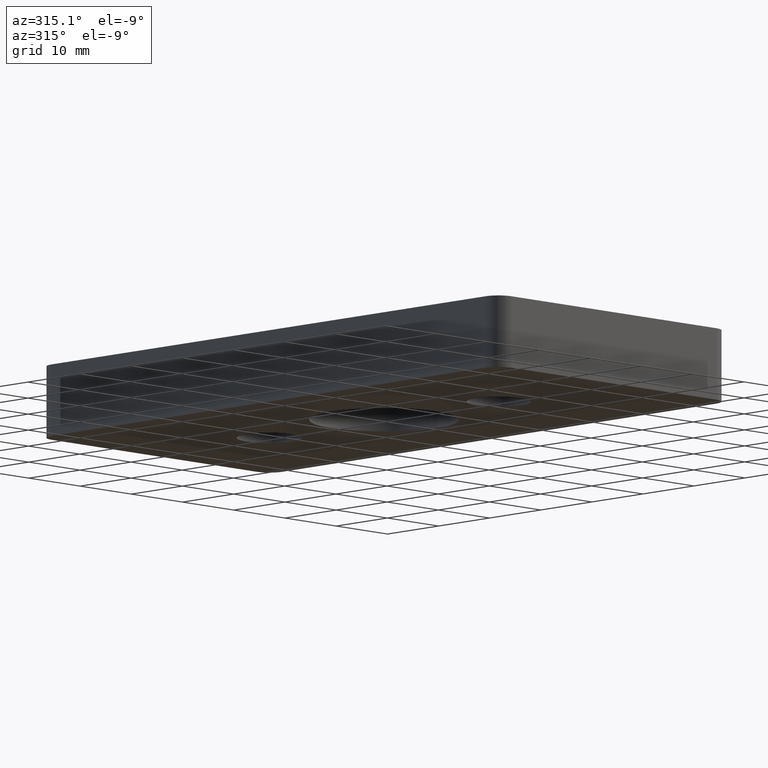
[diagram: clean part render]
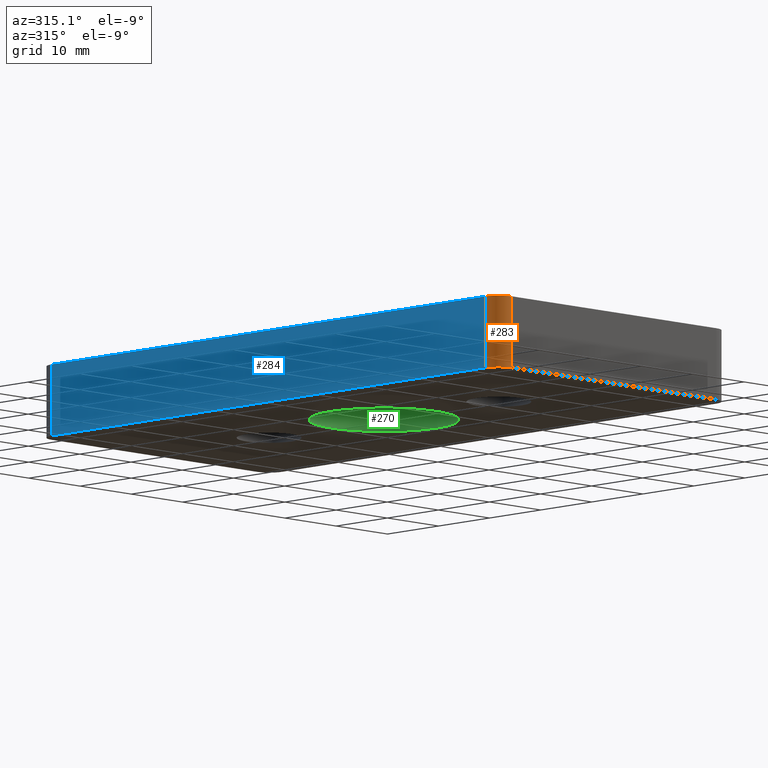
[diagram: same view with three faces highlighted in distinct colors, each labeled with its STEP entity id]
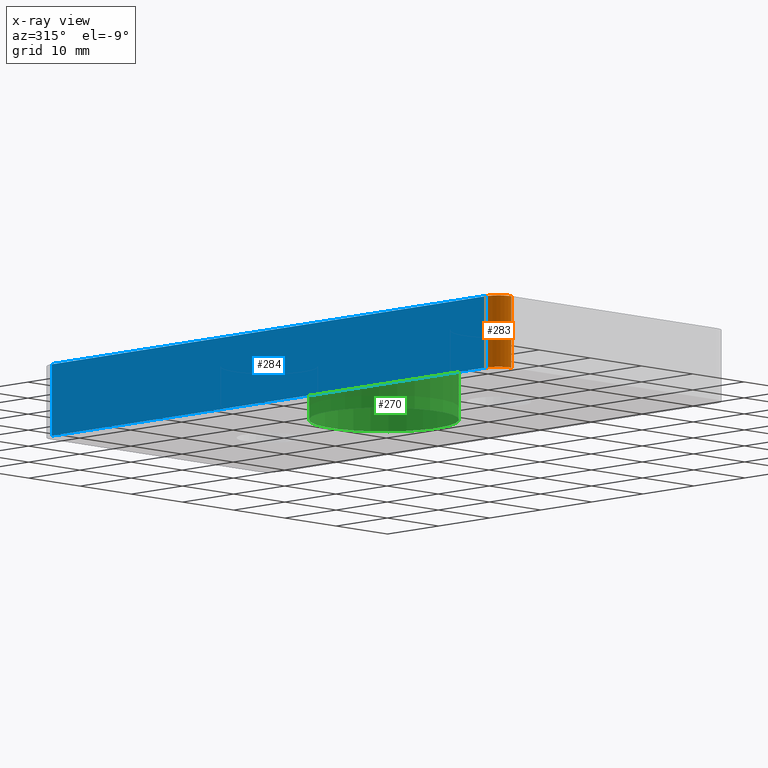
[diagram: x-ray of the same camera — body ghosted, the three highlighted faces saturated]
A machine part, auxiliary view with three faces highlighted in distinct colors.
The next image is the same camera in x-ray (body ghosted, the three faces saturated) — at least one of them is partly hidden behind the body in this view.
Their STEP definitions:

[orange] entity #283 — the highlighted cylindrical surface (edge-blend (fillet) strip) has radius 2.5 mm, axis along (0, 0, 1).
#27=LINE('',#478,#43);
#28=LINE('',#484,#44);
#43=VECTOR('',#396,10.);
#44=VECTOR('',#403,10.);
#81=FACE_OUTER_BOUND('',#105,.T.);
#105=EDGE_LOOP('',(#231,#232,#233,#234));
#131=CIRCLE('',#319,2.5);
#132=CIRCLE('',#320,2.5);
#155=VERTEX_POINT('',#474);
#156=VERTEX_POINT('',#476);
#157=VERTEX_POINT('',#480);
#158=VERTEX_POINT('',#482);
#187=EDGE_CURVE('',#155,#156,#27,.T.);
#188=EDGE_CURVE('',#157,#155,#131,.T.);
#189=EDGE_CURVE('',#158,#156,#132,.T.);
#190=EDGE_CURVE('',#157,#158,#28,.T.);
#231=ORIENTED_EDGE('',*,*,#188,.T.);
#232=ORIENTED_EDGE('',*,*,#187,.T.);
#233=ORIENTED_EDGE('',*,*,#189,.F.);
#234=ORIENTED_EDGE('',*,*,#190,.F.);
#269=CYLINDRICAL_SURFACE('',#318,2.5);
#283=ADVANCED_FACE('',(#81),#269,.T.);
#318=AXIS2_PLACEMENT_3D('',#479,#397,#398);
#319=AXIS2_PLACEMENT_3D('',#481,#399,#400);
#320=AXIS2_PLACEMENT_3D('',#483,#401,#402);
#396=DIRECTION('',(0.,0.,1.));
#397=DIRECTION('center_axis',(0.,0.,1.));
#398=DIRECTION('ref_axis',(-1.,0.,0.));
#399=DIRECTION('center_axis',(0.,0.,1.));
#400=DIRECTION('ref_axis',(-1.,0.,0.));
#401=DIRECTION('center_axis',(0.,0.,1.));
#402=DIRECTION('ref_axis',(-1.,0.,0.));
#403=DIRECTION('',(0.,0.,1.));
#474=CARTESIAN_POINT('',(5.1256764380845,0.601333552933284,0.));
#476=CARTESIAN_POINT('',(5.1256764380845,0.601333552933276,10.));
#478=CARTESIAN_POINT('',(5.1256764380845,0.601333552933284,0.));
#479=CARTESIAN_POINT('Origin',(5.1256764380845,3.10133355293328,0.));
#480=CARTESIAN_POINT('',(2.6256764380845,3.10133355293328,0.));
#481=CARTESIAN_POINT('Origin',(5.1256764380845,3.10133355293328,0.));
#482=CARTESIAN_POINT('',(2.6256764380845,3.10133355293328,10.));
#483=CARTESIAN_POINT('Origin',(5.1256764380845,3.10133355293328,10.));
#484=CARTESIAN_POINT('',(2.6256764380845,3.10133355293328,0.));

[blue] entity #284 — the highlighted planar face has unit normal (-1, -0, 0).
#15=LINE('',#445,#31);
#28=LINE('',#484,#44);
#29=LINE('',#486,#45);
#30=LINE('',#487,#46);
#31=VECTOR('',#364,10.);
#44=VECTOR('',#403,10.);
#45=VECTOR('',#406,85.);
#46=VECTOR('',#407,85.);
#52=PLANE('',#321);
#82=FACE_OUTER_BOUND('',#106,.T.);
#106=EDGE_LOOP('',(#235,#236,#237,#238));
#144=VERTEX_POINT('',#442);
#145=VERTEX_POINT('',#444);
#157=VERTEX_POINT('',#480);
#158=VERTEX_POINT('',#482);
#170=EDGE_CURVE('',#144,#145,#15,.T.);
#190=EDGE_CURVE('',#157,#158,#28,.T.);
#191=EDGE_CURVE('',#144,#157,#29,.T.);
#192=EDGE_CURVE('',#145,#158,#30,.T.);
#235=ORIENTED_EDGE('',*,*,#191,.T.);
#236=ORIENTED_EDGE('',*,*,#190,.T.);
#237=ORIENTED_EDGE('',*,*,#192,.F.);
#238=ORIENTED_EDGE('',*,*,#170,.F.);
#284=ADVANCED_FACE('',(#82),#52,.T.);
#321=AXIS2_PLACEMENT_3D('',#485,#404,#405);
#364=DIRECTION('',(0.,0.,1.));
#403=DIRECTION('',(0.,0.,1.));
#404=DIRECTION('center_axis',(-1.,-3.33066907387547E-16,0.));
#405=DIRECTION('ref_axis',(3.10862446895044E-16,-1.,0.));
#406=DIRECTION('',(3.33066907387547E-16,-1.,0.));
#407=DIRECTION('',(3.33066907387547E-16,-1.,0.));
#442=CARTESIAN_POINT('',(2.62567643808447,88.1013335529333,0.));
#444=CARTESIAN_POINT('',(2.62567643808447,88.1013335529333,10.));
#445=CARTESIAN_POINT('',(2.62567643808447,88.1013335529333,0.));
#480=CARTESIAN_POINT('',(2.6256764380845,3.10133355293328,0.));
#482=CARTESIAN_POINT('',(2.6256764380845,3.10133355293328,10.));
#484=CARTESIAN_POINT('',(2.6256764380845,3.10133355293328,0.));
#485=CARTESIAN_POINT('Origin',(2.62567643808447,88.1013335529333,0.));
#486=CARTESIAN_POINT('',(2.62567643808447,88.1013335529333,0.));
#487=CARTESIAN_POINT('',(2.62567643808447,88.1013335529333,10.));

[green] entity #270 — the highlighted cylindrical surface (bore or boss wall) has radius 10.376 mm, axis along (0, 0, 1).
#55=FACE_BOUND('',#86,.T.);
#68=FACE_OUTER_BOUND('',#85,.T.);
#85=EDGE_LOOP('',(#193));
#86=EDGE_LOOP('',(#194));
#115=CIRCLE('',#290,10.376);
#116=CIRCLE('',#291,10.376);
#133=VERTEX_POINT('',#414);
#134=VERTEX_POINT('',#416);
#159=EDGE_CURVE('',#133,#133,#115,.T.);
#160=EDGE_CURVE('',#134,#134,#116,.T.);
#193=ORIENTED_EDGE('',*,*,#159,.F.);
#194=ORIENTED_EDGE('',*,*,#160,.F.);
#261=CYLINDRICAL_SURFACE('',#289,10.376);
#270=ADVANCED_FACE('',(#68,#55),#261,.F.);
#289=AXIS2_PLACEMENT_3D('',#413,#326,#327);
#290=AXIS2_PLACEMENT_3D('',#415,#328,#329);
#291=AXIS2_PLACEMENT_3D('',#417,#330,#331);
#326=DIRECTION('center_axis',(0.,0.,1.));
#327=DIRECTION('ref_axis',(1.,0.,0.));
#328=DIRECTION('center_axis',(0.,0.,1.));
#329=DIRECTION('ref_axis',(1.,0.,0.));
#330=DIRECTION('center_axis',(0.,0.,-1.));
#331=DIRECTION('ref_axis',(1.,0.,0.));
#413=CARTESIAN_POINT('Origin',(25.1256764380845,45.6013335529333,-91.1187420807834));
#414=CARTESIAN_POINT('',(14.7496764380845,45.6013335529333,0.));
#415=CARTESIAN_POINT('Origin',(25.1256764380845,45.6013335529333,0.));
#416=CARTESIAN_POINT('',(35.5016764380845,45.6013335529333,10.));
#417=CARTESIAN_POINT('Origin',(25.1256764380845,45.6013335529333,10.));